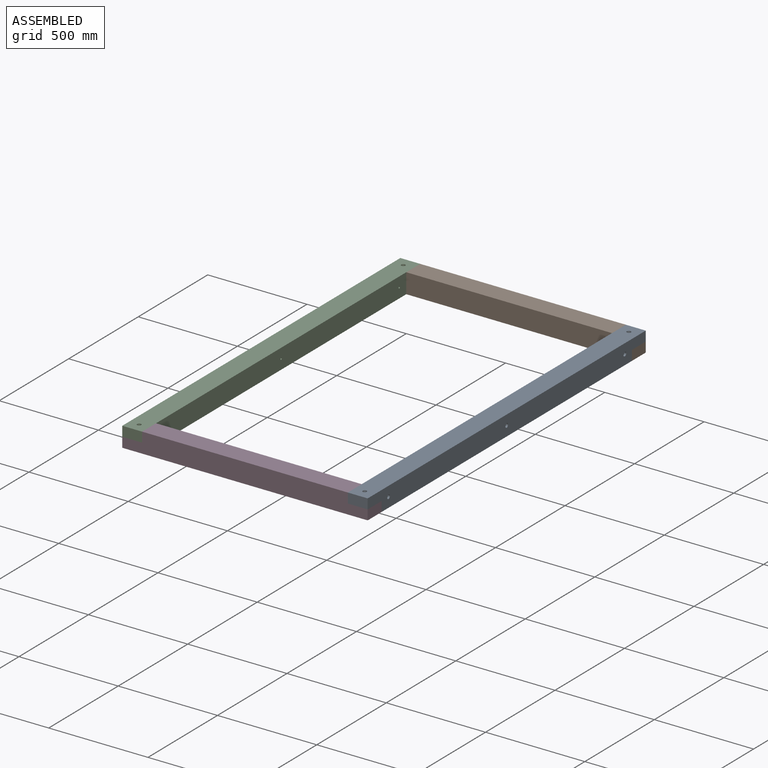
[diagram: assembled view]
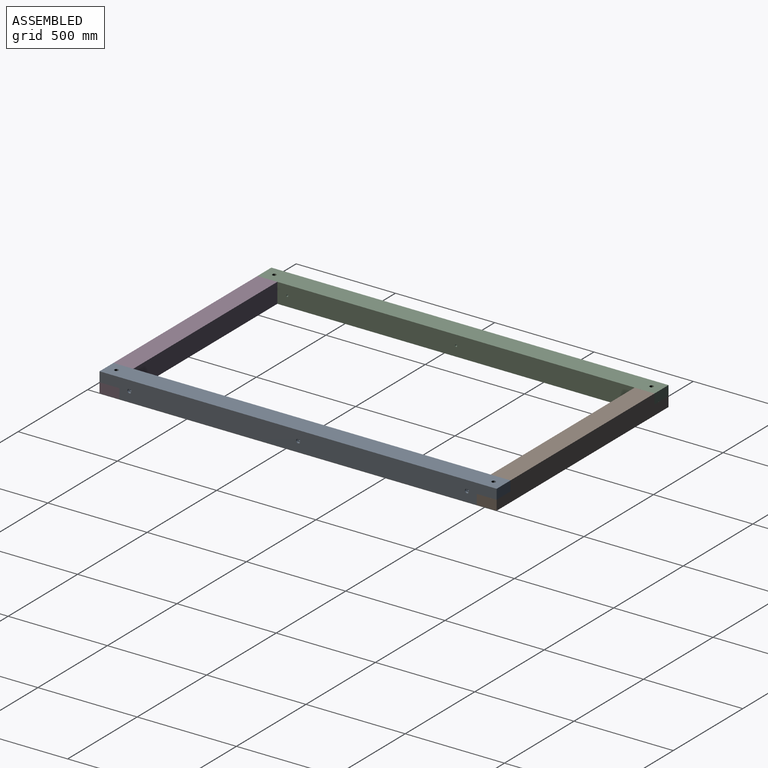
[diagram: assembled view, second angle]
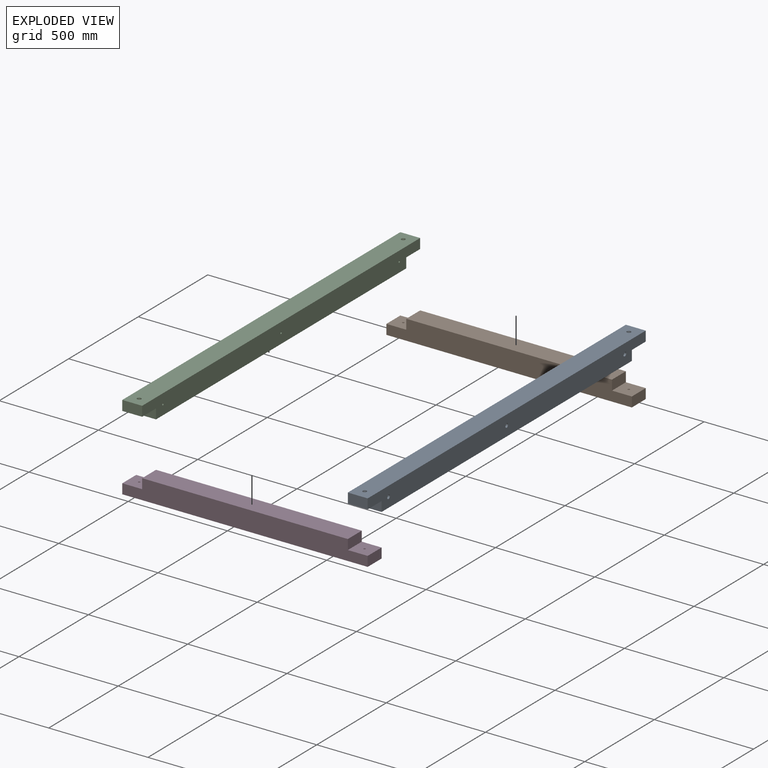
[diagram: exploded view]
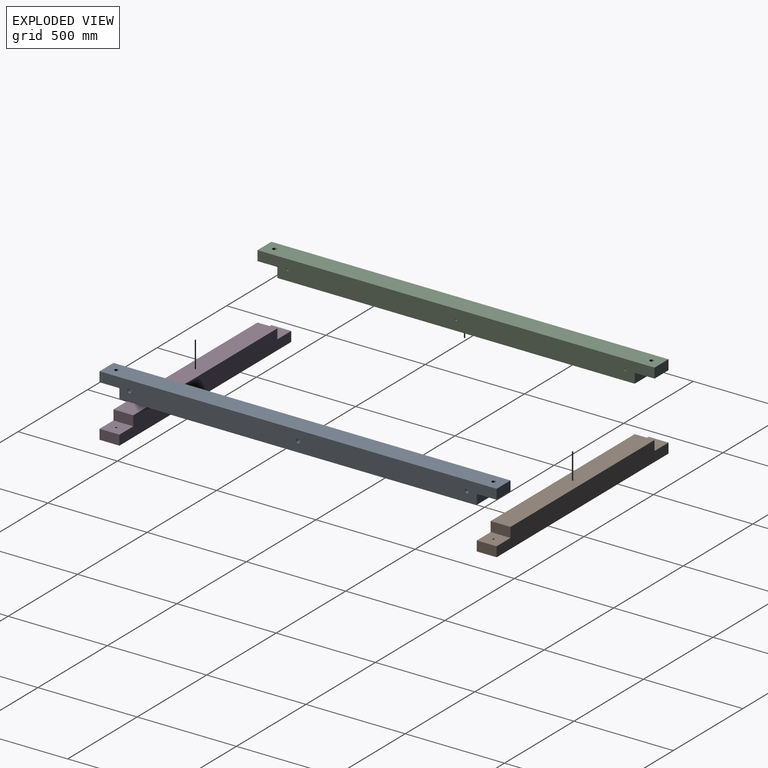
[diagram: exploded view, second angle]
ASSEMBLY  parts=4 mates=3
PART A: 25 faces, bbox 2000x100x100 mm
  f0: plane 2000x100mm, normal (0,-1,0), area 189057.5mm2, adj f5,f6,f7,f8,f9,f11,f14,f16
  f1: cylinder r=5mm len=90mm, axis (0,-1,0), area 2827.4mm2, adj f4,f24
  f2: cylinder r=5mm len=90mm, axis (0,-1,0), area 2827.4mm2, adj f4,f22
  f3: cylinder r=5mm len=90mm, axis (0,-1,0), area 2827.4mm2, adj f4,f20
  f4: plane 2000x100mm, normal (0,1,0), area 189764.4mm2, adj f1,f2,f3,f5,f6,f7,f8,f9
  f5: plane 100x50mm, normal (-1,0,0), area 5000mm2, adj f0,f4,f7,f11
  f6: plane 100x50mm, normal (1,0,0), area 5000mm2, adj f0,f4,f7,f16
  f7: plane 1800x100mm, normal (0,0,1), area 180000mm2, adj f0,f4,f5,f6
  f8: plane 2000x100mm, normal (0,0,-1), area 199371.7mm2, adj f0,f4,f9,f12,f14,f17
  f9: plane 100x50mm, normal (-1,0,0), area 5000mm2, adj f0,f4,f8,f11
  f10: cylinder r=5mm len=40mm, axis (0,0,-1), area 1256.6mm2, adj f11,f13
  f11: plane 100x100mm, normal (0,0,1), area 9921.5mm2, adj f0,f4,f5,f9,f10
  f12: cylinder r=10mm len=20mm, axis (0,0,-1), area 628.3mm2, adj f8,f13
  f13: plane 20x20mm, normal (0,0,-1), area 235.6mm2, adj f10,f12
  f14: plane 100x50mm, normal (1,0,0), area 5000mm2, adj f0,f4,f8,f16
  f15: cylinder r=5mm len=40mm, axis (0,0,-1), area 1256.6mm2, adj f16,f18
  f16: plane 100x100mm, normal (0,0,1), area 9921.5mm2, adj f0,f4,f6,f14,f15
  f17: cylinder r=10mm len=20mm, axis (0,0,-1), area 628.3mm2, adj f8,f18
  f18: plane 20x20mm, normal (0,0,-1), area 235.6mm2, adj f15,f17
  f19: cylinder r=10mm len=20mm, axis (0,-1,0), area 628.3mm2, adj f0,f20
  f20: plane 20x20mm, normal (0,-1,0), area 235.6mm2, adj f3,f19
  f21: cylinder r=10mm len=20mm, axis (0,-1,0), area 628.3mm2, adj f0,f22
  f22: plane 20x20mm, normal (0,-1,0), area 235.6mm2, adj f2,f21
  f23: cylinder r=10mm len=20mm, axis (0,-1,0), area 628.3mm2, adj f0,f24
  f24: plane 20x20mm, normal (0,-1,0), area 235.6mm2, adj f1,f23
PART B: 16 faces, bbox 1236.1x100x100 mm
  f0: plane 1236.07x100mm, normal (0,1,0), area 113606.8mm2, adj f1,f3,f4,f5,f6,f8,f11,f13
  f1: plane 100x50mm, normal (-1,0,0), area 5000mm2, adj f0,f2,f4,f8
  f2: plane 1236.07x100mm, normal (0,-1,0), area 113606.8mm2, adj f1,f3,f4,f5,f6,f8,f11,f13
  f3: plane 100x50mm, normal (1,0,0), area 5000mm2, adj f0,f2,f4,f13
  f4: plane 1036.07x100mm, normal (0,0,1), area 103606.8mm2, adj f0,f1,f2,f3
  f5: plane 1236.07x100mm, normal (0,0,-1), area 122978.5mm2, adj f0,f2,f6,f9,f11,f14
  f6: plane 100x50mm, normal (-1,0,0), area 5000mm2, adj f0,f2,f5,f8
  f7: cylinder r=5mm len=40mm, axis (0,0,-1), area 1256.6mm2, adj f8,f10
  f8: plane 100x100mm, normal (0,0,1), area 9921.5mm2, adj f0,f1,f2,f6,f7
  f9: cylinder r=10mm len=20mm, axis (0,0,-1), area 628.3mm2, adj f5,f10
  f10: plane 20x20mm, normal (0,0,-1), area 235.6mm2, adj f7,f9
  f11: plane 100x50mm, normal (1,0,0), area 5000mm2, adj f0,f2,f5,f13
  f12: cylinder r=5mm len=40mm, axis (0,0,-1), area 1256.6mm2, adj f13,f15
  f13: plane 100x100mm, normal (0,0,1), area 9921.5mm2, adj f0,f2,f3,f11,f12
  f14: cylinder r=10mm len=20mm, axis (0,0,-1), area 628.3mm2, adj f5,f15
  f15: plane 20x20mm, normal (0,0,-1), area 235.6mm2, adj f12,f14
PART C: same geometry as A
PART D: same geometry as B
PLACE A rot(axis=(0.71,-0.71,0),180deg) t=(1385.37,2030.25,54.61)mm
PLACE B t=(149.3,1930.25,-45.39)mm
PLACE C rot(axis=(0.71,0.71,0),180deg) t=(149.3,30.25,54.61)mm
PLACE D t=(149.3,30.25,-45.39)mm
MATE fastened B.f7 <-> C.f15  axis (0,0,1) through (199.3,1980.25,4.61)mm
MATE fastened A.f15 <-> D.f12  axis (0,0,-1) through (1335.37,80.25,4.61)mm
MATE fastened A.f10 <-> B.f12  axis (0,0,-1) through (1335.37,1980.25,4.61)mm
